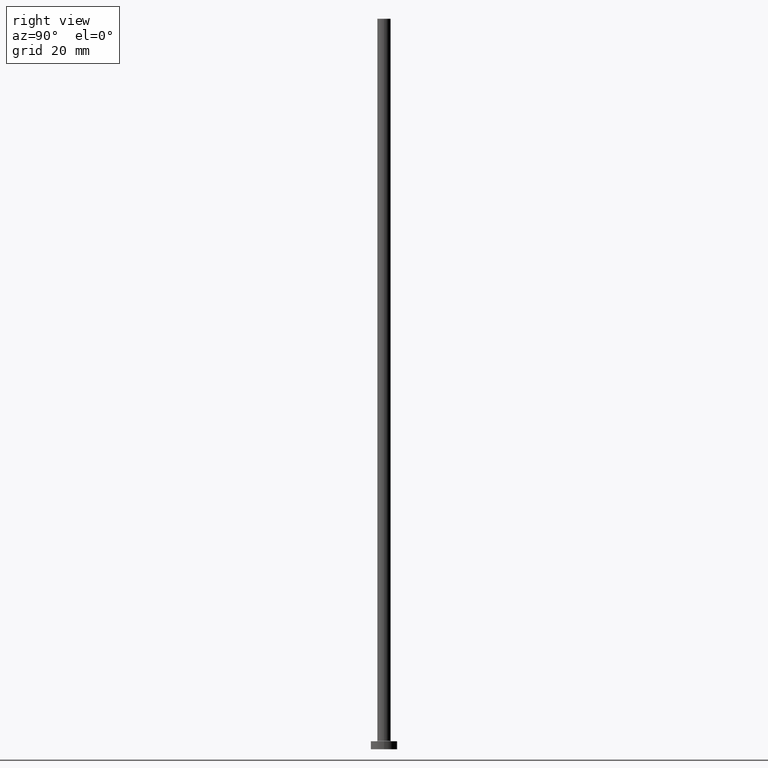
[diagram: clean part render]
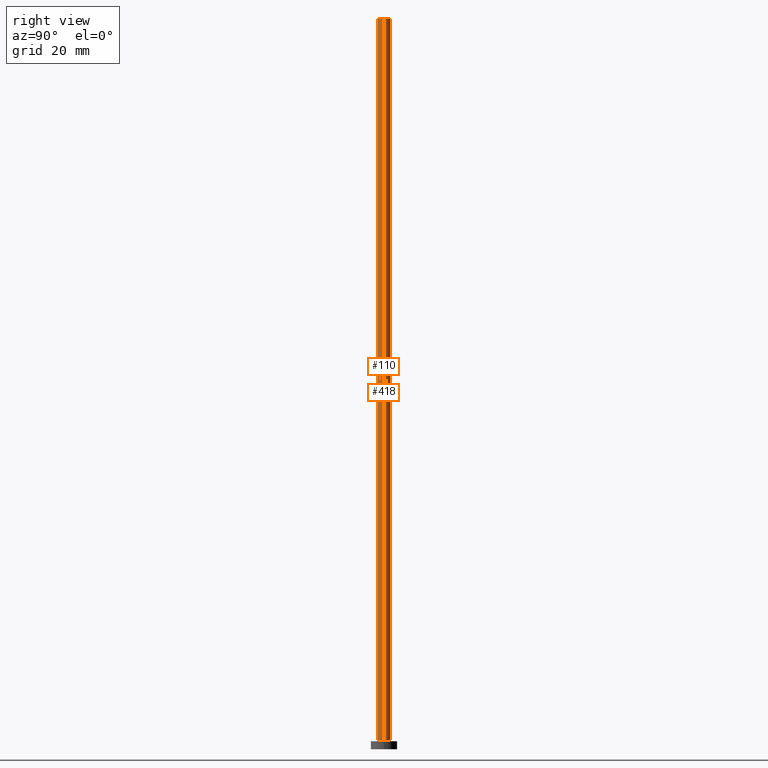
[diagram: same view with one multi-face feature highlighted, each face labeled with its STEP entity id]
A machine part, right view. The highlighted faces form ONE feature: a constant-radius fillet chain: 2 tangent blend faces with common blend radius 2.5 mm. The faces share edges in the B-rep.
Their STEP definitions:
[1] entity #110 (Cylinder):
#30 = ORIENTED_EDGE ( 'NONE', *, *, #36, .T. ) ;
#36 = EDGE_CURVE ( 'NONE', #378, #224, #387, .T. ) ;
#41 = DIRECTION ( 'NONE',  ( 0.000000000000000000, 0.000000000000000000, 1.000000000000000000 ) ) ;
#60 = CARTESIAN_POINT ( 'NONE',  ( 2.500000000000000000, 3.061616997868383141E-16, 275.0000000000000000 ) ) ;
#62 = EDGE_CURVE ( 'NONE', #248, #216, #362, .T. ) ;
#67 = DIRECTION ( 'NONE',  ( 1.000000000000000000, 0.000000000000000000, 0.000000000000000000 ) ) ;
#70 = CIRCLE ( 'NONE', #193, 2.500000000000000000 ) ;
#83 = DIRECTION ( 'NONE',  ( -1.000000000000000000, 0.000000000000000000, 0.000000000000000000 ) ) ;
#110 = ADVANCED_FACE ( 'NONE', ( #326 ), #355, .T. ) ;
#116 = AXIS2_PLACEMENT_3D ( 'NONE', #445, #308, #447 ) ;
#137 = CARTESIAN_POINT ( 'NONE',  ( 0.000000000000000000, 0.000000000000000000, 275.0000000000000000 ) ) ;
#180 = CARTESIAN_POINT ( 'NONE',  ( -2.500000000000000000, 0.000000000000000000, 275.0000000000000000 ) ) ;
#182 = VECTOR ( 'NONE', #321, 1000.000000000000000 ) ;
#191 = CARTESIAN_POINT ( 'NONE',  ( -2.500000000000000000, 0.000000000000000000, 275.0000000000000000 ) ) ;
#193 = AXIS2_PLACEMENT_3D ( 'NONE', #137, #41, #67 ) ;
#197 = CARTESIAN_POINT ( 'NONE',  ( 2.500000000000000000, 3.061616997868383141E-16, 3.300000000000025135 ) ) ;
#201 = CARTESIAN_POINT ( 'NONE',  ( -2.500000000000000000, 0.000000000000000000, 3.300000000000025135 ) ) ;
#216 = VERTEX_POINT ( 'NONE', #197 ) ;
#218 = EDGE_CURVE ( 'NONE', #224, #216, #391, .T. ) ;
#224 = VERTEX_POINT ( 'NONE', #201 ) ;
#235 = CARTESIAN_POINT ( 'NONE',  ( 0.000000000000000000, 0.000000000000000000, 275.0000000000000000 ) ) ;
#248 = VERTEX_POINT ( 'NONE', #60 ) ;
#259 = VECTOR ( 'NONE', #306, 1000.000000000000000 ) ;
#288 = AXIS2_PLACEMENT_3D ( 'NONE', #235, #396, #83 ) ;
#297 = EDGE_CURVE ( 'NONE', #378, #248, #70, .T. ) ;
#306 = DIRECTION ( 'NONE',  ( -0.000000000000000000, -0.000000000000000000, -1.000000000000000000 ) ) ;
#308 = DIRECTION ( 'NONE',  ( 0.000000000000000000, 0.000000000000000000, 1.000000000000000000 ) ) ;
#321 = DIRECTION ( 'NONE',  ( -0.000000000000000000, -0.000000000000000000, -1.000000000000000000 ) ) ;
#326 = FACE_OUTER_BOUND ( 'NONE', #338, .T. ) ;
#328 = CARTESIAN_POINT ( 'NONE',  ( 2.500000000000000000, 3.061616997868383141E-16, 275.0000000000000000 ) ) ;
#338 = EDGE_LOOP ( 'NONE', ( #374, #443, #30, #460 ) ) ;
#355 = CYLINDRICAL_SURFACE ( 'NONE', #288, 2.500000000000000000 ) ;
#362 = LINE ( 'NONE', #328, #259 ) ;
#374 = ORIENTED_EDGE ( 'NONE', *, *, #62, .F. ) ;
#378 = VERTEX_POINT ( 'NONE', #191 ) ;
#387 = LINE ( 'NONE', #180, #182 ) ;
#391 = CIRCLE ( 'NONE', #116, 2.500000000000000000 ) ;
#396 = DIRECTION ( 'NONE',  ( -0.000000000000000000, -0.000000000000000000, -1.000000000000000000 ) ) ;
#443 = ORIENTED_EDGE ( 'NONE', *, *, #297, .F. ) ;
#445 = CARTESIAN_POINT ( 'NONE',  ( 0.000000000000000000, 0.000000000000000000, 3.300000000000025135 ) ) ;
#447 = DIRECTION ( 'NONE',  ( 1.000000000000000000, 0.000000000000000000, 0.000000000000000000 ) ) ;
#460 = ORIENTED_EDGE ( 'NONE', *, *, #218, .T. ) ;
[2] entity #418 (Cylinder):
#36 = EDGE_CURVE ( 'NONE', #378, #224, #387, .T. ) ;
#57 = CIRCLE ( 'NONE', #320, 2.500000000000000000 ) ;
#60 = CARTESIAN_POINT ( 'NONE',  ( 2.500000000000000000, 3.061616997868383141E-16, 275.0000000000000000 ) ) ;
#62 = EDGE_CURVE ( 'NONE', #248, #216, #362, .T. ) ;
#113 = DIRECTION ( 'NONE',  ( -1.000000000000000000, 0.000000000000000000, 0.000000000000000000 ) ) ;
#140 = EDGE_CURVE ( 'NONE', #248, #378, #57, .T. ) ;
#176 = ORIENTED_EDGE ( 'NONE', *, *, #360, .T. ) ;
#178 = DIRECTION ( 'NONE',  ( -0.000000000000000000, -0.000000000000000000, -1.000000000000000000 ) ) ;
#180 = CARTESIAN_POINT ( 'NONE',  ( -2.500000000000000000, 0.000000000000000000, 275.0000000000000000 ) ) ;
#182 = VECTOR ( 'NONE', #321, 1000.000000000000000 ) ;
#191 = CARTESIAN_POINT ( 'NONE',  ( -2.500000000000000000, 0.000000000000000000, 275.0000000000000000 ) ) ;
#197 = CARTESIAN_POINT ( 'NONE',  ( 2.500000000000000000, 3.061616997868383141E-16, 3.300000000000025135 ) ) ;
#200 = AXIS2_PLACEMENT_3D ( 'NONE', #212, #215, #286 ) ;
#201 = CARTESIAN_POINT ( 'NONE',  ( -2.500000000000000000, 0.000000000000000000, 3.300000000000025135 ) ) ;
#212 = CARTESIAN_POINT ( 'NONE',  ( 0.000000000000000000, 0.000000000000000000, 3.300000000000025135 ) ) ;
#214 = EDGE_LOOP ( 'NONE', ( #383, #448, #176, #309 ) ) ;
#215 = DIRECTION ( 'NONE',  ( 0.000000000000000000, 0.000000000000000000, 1.000000000000000000 ) ) ;
#216 = VERTEX_POINT ( 'NONE', #197 ) ;
#224 = VERTEX_POINT ( 'NONE', #201 ) ;
#226 = CARTESIAN_POINT ( 'NONE',  ( 0.000000000000000000, 0.000000000000000000, 275.0000000000000000 ) ) ;
#247 = FACE_OUTER_BOUND ( 'NONE', #214, .T. ) ;
#248 = VERTEX_POINT ( 'NONE', #60 ) ;
#259 = VECTOR ( 'NONE', #306, 1000.000000000000000 ) ;
#286 = DIRECTION ( 'NONE',  ( 1.000000000000000000, 0.000000000000000000, 0.000000000000000000 ) ) ;
#293 = CIRCLE ( 'NONE', #200, 2.500000000000000000 ) ;
#306 = DIRECTION ( 'NONE',  ( -0.000000000000000000, -0.000000000000000000, -1.000000000000000000 ) ) ;
#309 = ORIENTED_EDGE ( 'NONE', *, *, #36, .F. ) ;
#320 = AXIS2_PLACEMENT_3D ( 'NONE', #226, #325, #353 ) ;
#321 = DIRECTION ( 'NONE',  ( -0.000000000000000000, -0.000000000000000000, -1.000000000000000000 ) ) ;
#325 = DIRECTION ( 'NONE',  ( 0.000000000000000000, 0.000000000000000000, 1.000000000000000000 ) ) ;
#328 = CARTESIAN_POINT ( 'NONE',  ( 2.500000000000000000, 3.061616997868383141E-16, 275.0000000000000000 ) ) ;
#345 = CYLINDRICAL_SURFACE ( 'NONE', #369, 2.500000000000000000 ) ;
#353 = DIRECTION ( 'NONE',  ( 1.000000000000000000, 0.000000000000000000, 0.000000000000000000 ) ) ;
#360 = EDGE_CURVE ( 'NONE', #216, #224, #293, .T. ) ;
#362 = LINE ( 'NONE', #328, #259 ) ;
#369 = AXIS2_PLACEMENT_3D ( 'NONE', #411, #178, #113 ) ;
#378 = VERTEX_POINT ( 'NONE', #191 ) ;
#383 = ORIENTED_EDGE ( 'NONE', *, *, #140, .F. ) ;
#387 = LINE ( 'NONE', #180, #182 ) ;
#411 = CARTESIAN_POINT ( 'NONE',  ( 0.000000000000000000, 0.000000000000000000, 275.0000000000000000 ) ) ;
#418 = ADVANCED_FACE ( 'NONE', ( #247 ), #345, .T. ) ;
#448 = ORIENTED_EDGE ( 'NONE', *, *, #62, .T. ) ;